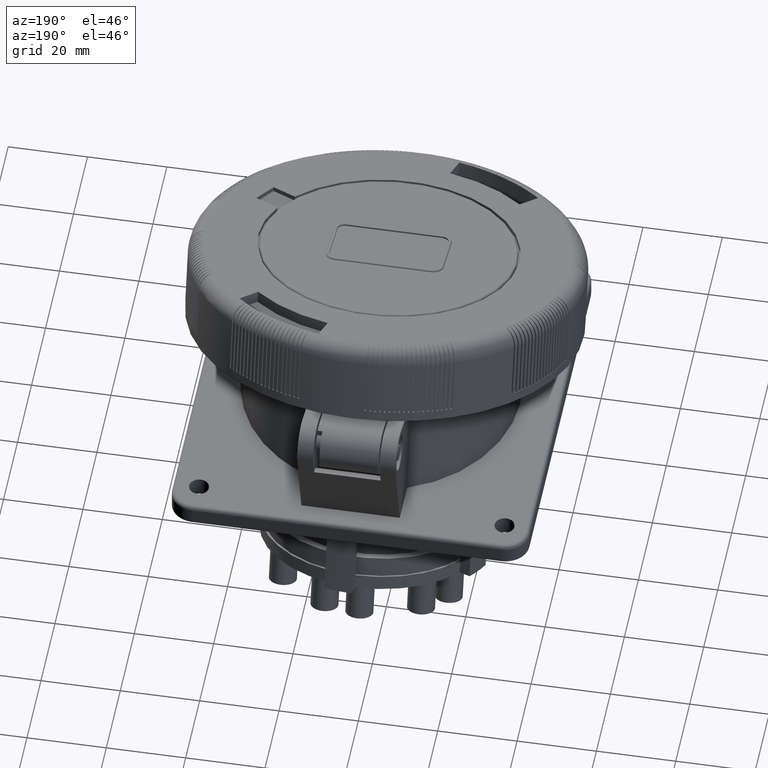
[diagram: clean part render]
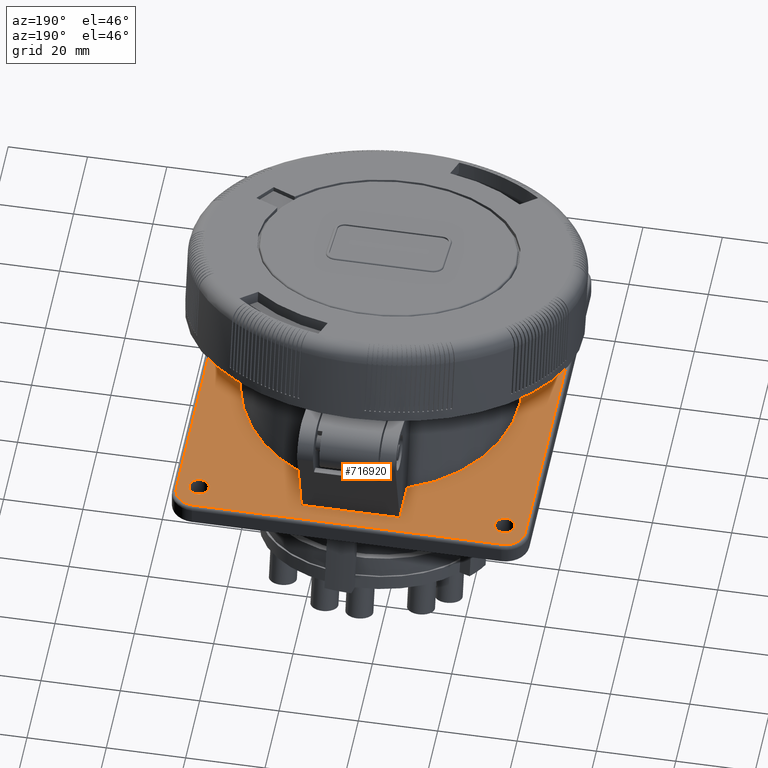
[diagram: same view with one face highlighted and labeled with its STEP entity id]
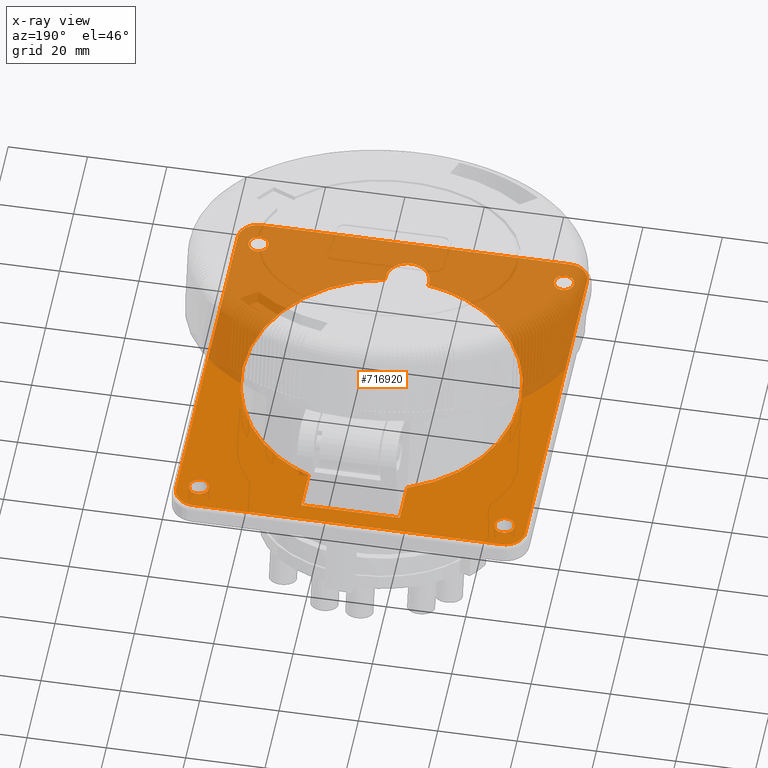
[diagram: x-ray of the same camera — body ghosted, the highlighted face saturated]
A machine part, auxiliary view. The second image highlights one B-rep face of the part: STEP entity #716920.
The next image is the same camera in x-ray: the body ghosted, the highlighted face saturated — about 51% of this face is hidden behind the body in this view.
In plain terms, the highlighted planar face has unit normal (-0, -0, 1).
Its self-contained STEP definition (entity closure, byte-faithful):
#714730=CARTESIAN_POINT('',(31.8061296294996,-7.30973608751773,
-9.00019106474853));
#714740=VERTEX_POINT('',#714730);
#714820=CARTESIAN_POINT('',(36.1928386711453,-4.91040622608891,
-9.00019106474853));
#714830=VERTEX_POINT('',#714820);
#714860=CARTESIAN_POINT('',(33.9994841503224,-6.11007115680332,
-9.00019106474853));
#714870=DIRECTION('',(-0.124198452724194,0.227072769060265,
0.965925826289068));
#714880=DIRECTION('',(0.877341808329136,0.479865972285764,
1.38777878078145E-17));
#714890=AXIS2_PLACEMENT_3D('',#714860,#714870,#714880);
#714900=CIRCLE('',#714890,2.5);
#714910=EDGE_CURVE('',#714740,#714830,#714900,.T.);
#715030=CARTESIAN_POINT('',(37.2841736536939,93.1222297802493,
-31.9056765563216));
#715040=DIRECTION('',(-0.124198452724194,0.227072769060265,
0.965925826289068));
#715050=DIRECTION('',(-0.463514935788135,0.847447111148266,
-0.25881904510252));
#715060=AXIS2_PLACEMENT_3D('',#715030,#715040,#715050);
#715070=PLANE('',#715060);
#715080=CARTESIAN_POINT('',(101.554803391666,30.8396087092005,
-9.00019106474853));
#715090=DIRECTION('',(-0.124198452724194,0.227072769060265,
0.965925826289068));
#715100=DIRECTION('',(0.877341808329136,0.479865972285764,
1.38777878078145E-17));
#715110=AXIS2_PLACEMENT_3D('',#715080,#715090,#715100);
#715120=CIRCLE('',#715110,2.5);
#715130=CARTESIAN_POINT('',(103.748157912489,32.039273639915,
-9.00019106474853));
#715140=VERTEX_POINT('',#715130);
#715150=CARTESIAN_POINT('',(99.361448870843,29.6399437784861,
-9.00019106474853));
#715160=VERTEX_POINT('',#715150);
#715170=EDGE_CURVE('',#715140,#715160,#715120,.T.);
#715180=ORIENTED_EDGE('',*,*,#715170,.F.);
#715190=EDGE_CURVE('',#715160,#715140,#715120,.T.);
#715200=ORIENTED_EDGE('',*,*,#715190,.F.);
#715210=EDGE_LOOP('',(#715200,#715180));
#715220=FACE_BOUND('',#715210,.T.);
#715230=EDGE_CURVE('',#714830,#714740,#714900,.T.);
#715240=ORIENTED_EDGE('',*,*,#715230,.F.);
#715250=ORIENTED_EDGE('',*,*,#714910,.F.);
#715260=EDGE_LOOP('',(#715250,#715240));
#715270=FACE_BOUND('',#715260,.T.);
#715280=CARTESIAN_POINT('',(62.1560338496745,102.872613156803,
-30.9998098984628));
#715290=DIRECTION('',(-0.124198452724194,0.227072769060265,
0.965925826289068));
#715300=DIRECTION('',(0.877341808329136,0.479865972285764,
1.38777878078145E-17));
#715310=AXIS2_PLACEMENT_3D('',#715280,#715290,#715300);
#715320=CIRCLE('',#715310,2.5);
#715330=CARTESIAN_POINT('',(64.3493883704973,104.072278087518,
-30.9998098984628));
#715340=VERTEX_POINT('',#715330);
#715350=CARTESIAN_POINT('',(59.9626793288517,101.672948226089,
-30.9998098984628));
#715360=VERTEX_POINT('',#715350);
#715370=EDGE_CURVE('',#715340,#715360,#715320,.T.);
#715380=ORIENTED_EDGE('',*,*,#715370,.F.);
#715390=EDGE_CURVE('',#715360,#715340,#715320,.T.);
#715400=ORIENTED_EDGE('',*,*,#715390,.F.);
#715410=EDGE_LOOP('',(#715400,#715380));
#715420=FACE_BOUND('',#715410,.T.);
#715430=CARTESIAN_POINT('',(-5.39928539166897,65.9229332907993,
-30.9998098984628));
#715440=DIRECTION('',(-0.124198452724194,0.227072769060265,
0.965925826289068));
#715450=DIRECTION('',(0.877341808329136,0.479865972285764,
1.38777878078145E-17));
#715460=AXIS2_PLACEMENT_3D('',#715430,#715440,#715450);
#715470=CIRCLE('',#715460,2.5);
#715480=CARTESIAN_POINT('',(-3.20593087084613,67.1225982215137,
-30.9998098984628));
#715490=VERTEX_POINT('',#715480);
#715500=CARTESIAN_POINT('',(-7.59263991249181,64.7232683600849,
-30.9998098984628));
#715510=VERTEX_POINT('',#715500);
#715520=EDGE_CURVE('',#715490,#715510,#715470,.T.);
#715530=ORIENTED_EDGE('',*,*,#715520,.F.);
#715540=EDGE_CURVE('',#715510,#715490,#715470,.T.);
#715550=ORIENTED_EDGE('',*,*,#715540,.F.);
#715560=EDGE_LOOP('',(#715550,#715530));
#715570=FACE_BOUND('',#715560,.T.);
#715580=CARTESIAN_POINT('',(4.16966225662498,73.2265604885033,
-31.4863962874563));
#715590=DIRECTION('',(-0.877341808329136,-0.479865972285765,
1.08723540441493E-16));
#715600=VECTOR('',#715590,1.);
#715610=LINE('',#715580,#715600);
#715620=CARTESIAN_POINT('',(38.3859927814612,91.9413334076481,
-31.4863962874563));
#715630=VERTEX_POINT('',#715620);
#715640=CARTESIAN_POINT('',(16.6279159348987,80.0406572949611,
-31.4863962874563));
#715650=VERTEX_POINT('',#715640);
#715660=EDGE_CURVE('',#715630,#715650,#715610,.T.);
#715670=ORIENTED_EDGE('',*,*,#715660,.F.);
#715680=CARTESIAN_POINT('',(58.2886501550773,3.87208938641033,
-8.22373392944096));
#715690=DIRECTION('',(-0.463514935788135,0.847447111148266,
-0.25881904510252));
#715700=VECTOR('',#715690,1.);
#715710=LINE('',#715680,#715700);
#715720=CARTESIAN_POINT('',(21.4928018697937,71.1461574347084,
-28.7699247457976));
#715730=VERTEX_POINT('',#715720);
#715740=EDGE_CURVE('',#715730,#715650,#715710,.T.);
#715750=ORIENTED_EDGE('',*,*,#715740,.T.);
#715760=CARTESIAN_POINT('',(48.0777589999985,48.3812709999999,
-20.0000004816056));
#715770=DIRECTION('',(-0.124198452724194,0.227072769060265,
0.965925826289068));
#715780=DIRECTION('',(-0.463514935788134,0.847447111148266,
-0.25881904510252));
#715790=AXIS2_PLACEMENT_3D('',#715760,#715770,#715780);
#715800=ELLIPSE('',#715790,36.2346663143529,35.);
#715810=CARTESIAN_POINT('',(59.8390211807516,15.4165518002921,
-10.7382948812135));
#715820=VERTEX_POINT('',#715810);
#715830=EDGE_CURVE('',#715730,#715820,#715800,.T.);
#715840=ORIENTED_EDGE('',*,*,#715830,.F.);
#715850=CARTESIAN_POINT('',(64.3423086325484,7.18316459518211,
-8.22373392944096));
#715860=DIRECTION('',(-0.463514935788134,0.847447111148266,
-0.25881904510252));
#715870=VECTOR('',#715860,1.);
#715880=LINE('',#715850,#715870);
#715890=CARTESIAN_POINT('',(60.3116143689472,14.5525068663275,
-10.4744066906793));
#715900=VERTEX_POINT('',#715890);
#715910=EDGE_CURVE('',#715900,#715820,#715880,.T.);
#715920=ORIENTED_EDGE('',*,*,#715910,.T.);
#715930=CARTESIAN_POINT('',(65.1369943147574,17.1917697138992,
-10.4744066906793));
#715940=DIRECTION('',(-0.124198452724194,0.227072769060265,
0.965925826289068));
#715950=DIRECTION('',(-0.463514935788134,0.847447111148266,
-0.25881904510252));
#715960=AXIS2_PLACEMENT_3D('',#715930,#715940,#715950);
#715970=ELLIPSE('',#715960,5.69401899225546,5.5);
#715980=CARTESIAN_POINT('',(69.9623742605676,19.8310325614709,
-10.4744066906793));
#715990=VERTEX_POINT('',#715980);
#716000=EDGE_CURVE('',#715900,#715990,#715970,.T.);
#716010=ORIENTED_EDGE('',*,*,#716000,.F.);
#716020=CARTESIAN_POINT('',(73.9930685241688,12.4616902903255,
-8.22373392944096));
#716030=DIRECTION('',(0.463514935788134,-0.847447111148266,
0.25881904510252));
#716040=VECTOR('',#716030,1.);
#716050=LINE('',#716020,#716040);
#716060=CARTESIAN_POINT('',(69.4897810723721,20.6950774954355,
-10.7382948812135));
#716070=VERTEX_POINT('',#716060);
#716080=EDGE_CURVE('',#716070,#715990,#716050,.T.);
#716090=ORIENTED_EDGE('',*,*,#716080,.T.);
#716100=CARTESIAN_POINT('',(43.2508787163562,83.0468335473954,
-28.7699247457976));
#716110=VERTEX_POINT('',#716100);
#716120=EDGE_CURVE('',#716070,#716110,#715800,.T.);
#716130=ORIENTED_EDGE('',*,*,#716120,.F.);
#716140=CARTESIAN_POINT('',(80.0467270016399,15.7727654990973,
-8.22373392944096));
#716150=DIRECTION('',(-0.463514935788135,0.847447111148266,
-0.25881904510252));
#716160=VECTOR('',#716150,1.);
#716170=LINE('',#716140,#716160);
#716180=EDGE_CURVE('',#716110,#715630,#716170,.T.);
#716190=ORIENTED_EDGE('',*,*,#716180,.F.);
#716200=EDGE_LOOP('',(#716190,#716130,#716090,#716010,#715920,#715840,
#715750,#715670));
#716210=FACE_BOUND('',#716200,.T.);
#716220=CARTESIAN_POINT('',(102.688746699513,29.808371028621,
-8.61196249709475));
#716230=DIRECTION('',(-0.124198452724194,0.227072769060265,
0.965925826289068));
#716240=DIRECTION('',(0.877341808329136,0.479865972285764,
1.38777878078145E-17));
#716250=AXIS2_PLACEMENT_3D('',#716220,#716230,#716240);
#716260=CIRCLE('',#716250,5.);
#716270=CARTESIAN_POINT('',(105.006321378453,25.5711354728797,
-7.31786727158215));
#716280=VERTEX_POINT('',#716270);
#716290=CARTESIAN_POINT('',(107.075455741158,32.2077008900499,
-8.61196249709475));
#716300=VERTEX_POINT('',#716290);
#716310=EDGE_CURVE('',#716280,#716300,#716260,.T.);
#716320=ORIENTED_EDGE('',*,*,#716310,.T.);
#716330=CARTESIAN_POINT('',(47.452698752062,-5.90807230906644,
-7.31786727158215));
#716340=DIRECTION('',(-0.877341808329136,-0.479865972285765,
3.46519046242032E-17));
#716350=VECTOR('',#716340,1.);
#716360=LINE('',#716330,#716350);
#716370=CARTESIAN_POINT('',(36.5736603287807,-11.8584103654099,
-7.31786727158215));
#716380=VERTEX_POINT('',#716370);
#716390=EDGE_CURVE('',#716280,#716380,#716360,.T.);
#716400=ORIENTED_EDGE('',*,*,#716390,.F.);
#716410=CARTESIAN_POINT('',(34.2560856498401,-7.62117480966859,
-8.61196249709475));
#716420=DIRECTION('',(0.124198452724194,-0.227072769060265,
-0.965925826289068));
#716430=DIRECTION('',(-0.877341808329136,-0.479865972285764,
-1.38777878078145E-17));
#716440=AXIS2_PLACEMENT_3D('',#716410,#716420,#716430);
#716450=CIRCLE('',#716440,5.);
#716460=CARTESIAN_POINT('',(29.8693766081944,-10.0205046710974,
-8.61196249709475));
#716470=VERTEX_POINT('',#716460);
#716480=EDGE_CURVE('',#716380,#716470,#716450,.T.);
#716490=ORIENTED_EDGE('',*,*,#716480,.F.);
#716500=CARTESIAN_POINT('',(30.5646490118766,-11.2916753378198,
-8.22373392944096));
#716510=DIRECTION('',(-0.463514935788134,0.847447111148266,
-0.25881904510252));
#716520=VECTOR('',#716510,1.);
#716530=LINE('',#716500,#716520);
#716540=CARTESIAN_POINT('',(-10.9199377411614,64.55484110995,
-31.3880384661165));
#716550=VERTEX_POINT('',#716540);
#716560=EDGE_CURVE('',#716470,#716550,#716530,.T.);
#716570=ORIENTED_EDGE('',*,*,#716560,.F.);
#716580=CARTESIAN_POINT('',(-6.53322869951573,66.9541709713788,
-31.3880384661165));
#716590=DIRECTION('',(-0.124198452724194,0.227072769060265,
0.965925826289068));
#716600=DIRECTION('',(0.877341808329136,0.479865972285764,
1.38777878078145E-17));
#716610=AXIS2_PLACEMENT_3D('',#716580,#716590,#716600);
#716620=CIRCLE('',#716610,5.);
#716630=CARTESIAN_POINT('',(-8.85080337845641,71.1914065271202,
-32.6821336916291));
#716640=VERTEX_POINT('',#716630);
#716650=EDGE_CURVE('',#716640,#716550,#716620,.T.);
#716660=ORIENTED_EDGE('',*,*,#716650,.T.);
#716670=CARTESIAN_POINT('',(2.02823504482488,77.1417445834636,
-32.6821336916291));
#716680=DIRECTION('',(0.877341808329136,0.479865972285765,
-1.08723540441493E-16));
#716690=VECTOR('',#716680,1.);
#716700=LINE('',#716670,#716690);
#716710=CARTESIAN_POINT('',(59.5818576712162,108.62095236541,
-32.6821336916292));
#716720=VERTEX_POINT('',#716710);
#716730=EDGE_CURVE('',#716640,#716720,#716700,.T.);
#716740=ORIENTED_EDGE('',*,*,#716730,.F.);
#716750=CARTESIAN_POINT('',(61.8994323501569,104.383716809668,
-31.3880384661165));
#716760=DIRECTION('',(-0.124198452724194,0.227072769060265,
0.965925826289068));
#716770=DIRECTION('',(0.877341808329136,0.479865972285764,
1.38777878078145E-17));
#716780=AXIS2_PLACEMENT_3D('',#716750,#716760,#716770);
#716790=CIRCLE('',#716780,5.);
#716800=CARTESIAN_POINT('',(66.2861413918025,106.783046671097,
-31.3880384661165));
#716810=VERTEX_POINT('',#716800);
#716820=EDGE_CURVE('',#716810,#716720,#716790,.T.);
#716830=ORIENTED_EDGE('',*,*,#716820,.T.);
#716840=CARTESIAN_POINT('',(107.770728144841,30.9365302233274,
-8.22373392944096));
#716850=DIRECTION('',(0.463514935788134,-0.847447111148266,
0.25881904510252));
#716860=VECTOR('',#716850,1.);
#716870=LINE('',#716840,#716860);
#716880=EDGE_CURVE('',#716810,#716300,#716870,.T.);
#716890=ORIENTED_EDGE('',*,*,#716880,.F.);
#716900=EDGE_LOOP('',(#716890,#716830,#716740,#716660,#716570,#716490,
#716400,#716320));
#716910=FACE_OUTER_BOUND('',#716900,.T.);
#716920=ADVANCED_FACE('',(#715220,#715270,#715420,#715570,#716210,
#716910),#715070,.T.);